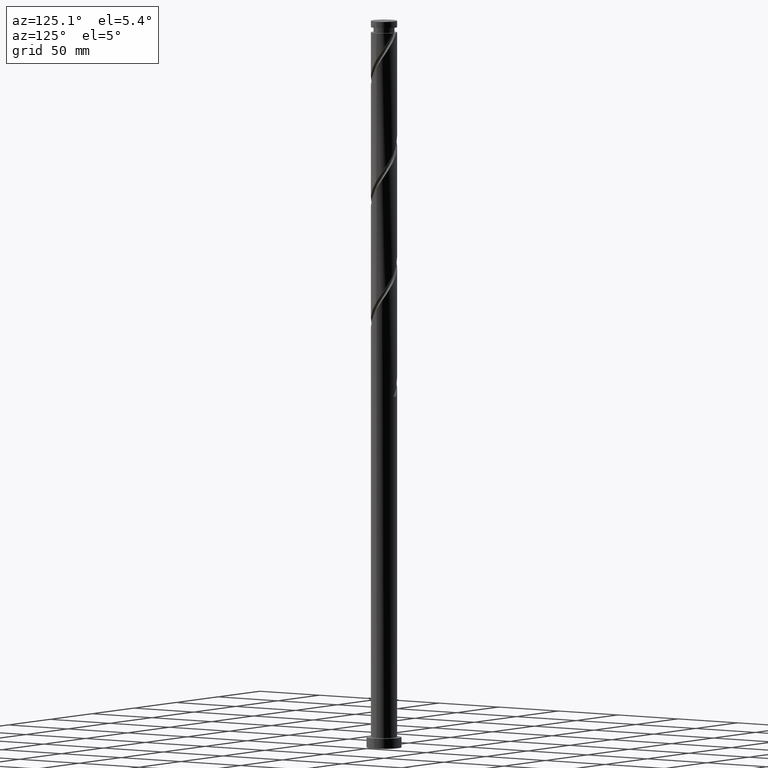
[diagram: clean part render]
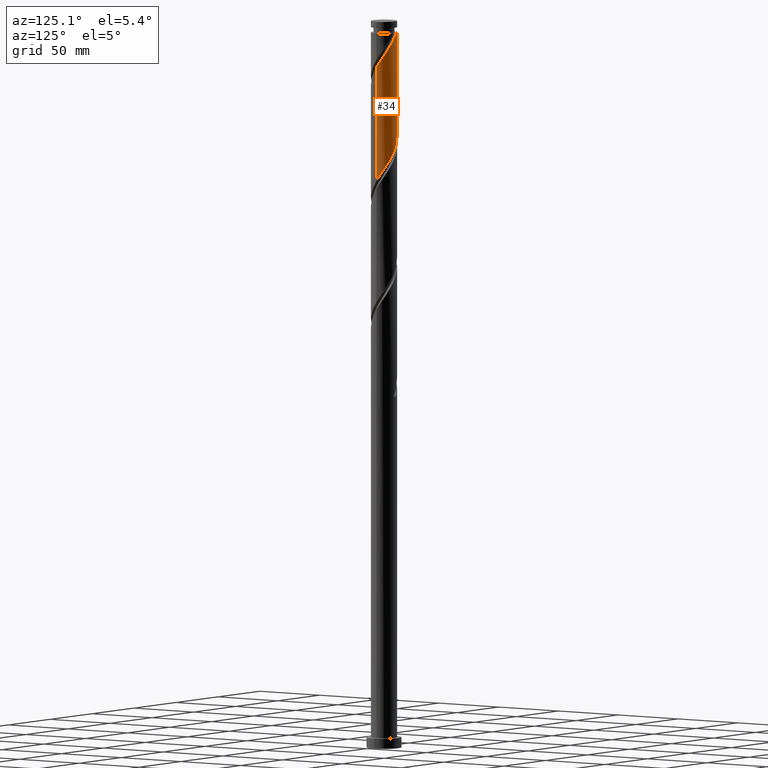
[diagram: same view with one face highlighted and labeled with its STEP entity id]
A machine part, auxiliary view. The second image highlights one B-rep face of the part: STEP entity #34.
In plain terms, the highlighted cylindrical surface (edge-blend (fillet) strip) has radius 9 mm, axis along (-0, -0, -1).
Its self-contained STEP definition (entity closure, byte-faithful):
#29 = CARTESIAN_POINT ( 'NONE',  ( 9.000000000000017764, 9.691915699351521729E-17, 468.5747817011167626 ) ) ;
#34 = ADVANCED_FACE ( 'NONE', ( #1289 ), #1941, .T. ) ;
#50 = CARTESIAN_POINT ( 'NONE',  ( 0.03586761831831040276, 8.999928528269329320, 411.3358120124469224 ) ) ;
#51 = CARTESIAN_POINT ( 'NONE',  ( 0.000000000000000000, 0.000000000000000000, 492.0649786791136080 ) ) ;
#74 = CARTESIAN_POINT ( 'NONE',  ( -7.958643512293389399, 4.294850232963514536, 425.6587286791137217 ) ) ;
#80 = VERTEX_POINT ( 'NONE', #335 ) ;
#85 = CARTESIAN_POINT ( 'NONE',  ( -5.709259818917118423, 7.013565241690909779, 420.4503953457803505 ) ) ;
#90 = EDGE_CURVE ( 'NONE', #1164, #290, #212, .T. ) ;
#125 = CARTESIAN_POINT ( 'NONE',  ( 8.999928528269348860, 0.03586761831830513614, 468.6274786791136080 ) ) ;
#180 = VECTOR ( 'NONE', #1307, 1000.000000000000000 ) ;
#212 = LINE ( 'NONE', #532, #638 ) ;
#221 = CARTESIAN_POINT ( 'NONE',  ( -7.463240103083756516, 5.029915224307700328, 424.3566453457802368 ) ) ;
#231 = CARTESIAN_POINT ( 'NONE',  ( 4.294850232963515424, 7.958643512293386735, 404.8253953457804073 ) ) ;
#241 = CARTESIAN_POINT ( 'NONE',  ( 6.389272728671397061, 6.338548256395620584, 400.9191453457802936 ) ) ;
#273 = CARTESIAN_POINT ( 'NONE',  ( 7.463240103083767174, 5.029915224307708321, 476.4399786791136080 ) ) ;
#290 = VERTEX_POINT ( 'NONE', #915 ) ;
#300 = CARTESIAN_POINT ( 'NONE',  ( -8.643604123793917182, 2.659671564402113386, 428.2628953457804073 ) ) ;
#319 = CARTESIAN_POINT ( 'NONE',  ( 6.338548256395635683, 6.389272728671402390, 479.0441453457802368 ) ) ;
#335 = CARTESIAN_POINT ( 'NONE',  ( -8.999999999999953815, 0.000000000000000000, 492.0649786791136080 ) ) ;
#362 = CARTESIAN_POINT ( 'NONE',  ( 9.000000000000000000, 7.742349579828172045E-15, 390.5551756571103965 ) ) ;
#386 = CARTESIAN_POINT ( 'NONE',  ( 1.790977386791925197, 8.820000000000000284, 408.7316453457802368 ) ) ;
#406 = CARTESIAN_POINT ( 'NONE',  ( -3.410986181794384287, 8.328575704621275833, 416.5441453457802936 ) ) ;
#438 =( BOUNDED_CURVE ( )  B_SPLINE_CURVE ( 2, ( #622, #1265, #1914, #1106, #1753, #300, #949, #74, #221, #879, #1203, #85, #1037, #734, #406, #710, #1861, #1852, #50, #1327, #386, #899, #1353, #231, #1522, #1533, #241, #2005, #1543, #1213, #1510, #1373, #2025, #1841, #362 ),
 .UNSPECIFIED., .F., .T. ) 
 B_SPLINE_CURVE_WITH_KNOTS ( ( 3, 2, 2, 2, 2, 2, 2, 2, 2, 2, 2, 2, 2, 2, 2, 2, 2, 3 ),
 ( 0.4295286902180870392, 0.4296875000000000000, 0.4375000000000000000, 0.4453125000000000000, 0.4531250000000000000, 0.4609375000000000000, 0.4687500000000000000, 0.4765625000000000000, 0.4843750000000000000, 0.4921875000000000000, 0.5000000000000000000, 0.5078125000000000000, 0.5156250000000000000, 0.5234375000000000000, 0.5312500000000000000, 0.5390625000000000000, 0.5468750000000000000, 0.5545286902180872612 ),
 .UNSPECIFIED. ) 
 CURVE ( )  GEOMETRIC_REPRESENTATION_ITEM ( )  RATIONAL_B_SPLINE_CURVE ( ( 0.9089165573359326844, 0.9090019243628375545, 0.9090909090909294887, 0.9047133878838355958, 0.9090909090909294887, 0.9047133878838355958, 0.9090909090909294887, 0.9047133878838355958, 0.9090909090909294887, 0.9047133878838355958, 0.9090909090909294887, 0.9047133878838355958, 0.9090909090909294887, 0.9047133878838355958, 0.9090909090909294887, 0.9047133878838355958, 0.9090909090909294887, 0.9047133878838355958, 0.9090909090909294887, 0.9047133878838355958, 0.9090909090909294887, 0.9047133878838355958, 0.9090909090909294887, 0.9047133878838355958, 0.9090909090909294887, 0.9047133878838355958, 0.9090909090909294887, 0.9047133878838355958, 0.9090909090909294887, 0.9047133878838355958, 0.9090909090909294887, 0.9047133878838355958, 0.9090909090909294887, 0.9048023726119274190, 0.9089165573359329064 ) ) 
 REPRESENTATION_ITEM ( '' )  );
#485 = DIRECTION ( 'NONE',  ( -0.000000000000000000, -0.000000000000000000, -1.000000000000000000 ) ) ;
#532 = CARTESIAN_POINT ( 'NONE',  ( 9.000000000000001776, 1.102182119232617911E-15, 500.0000000000000000 ) ) ;
#578 = CARTESIAN_POINT ( 'NONE',  ( 9.000000000000017764, 0.01793388036832644500, 468.6011352556338920 ) ) ;
#589 = CARTESIAN_POINT ( 'NONE',  ( -0.03586761831830471980, 8.999928528269348860, 489.4608120124469792 ) ) ;
#601 = CARTESIAN_POINT ( 'NONE',  ( 4.970269554913029353, 7.503094065217689845, 481.6483120124469224 ) ) ;
#619 = CIRCLE ( 'NONE', #2080, 8.999999999999953815 ) ;
#622 = CARTESIAN_POINT ( 'NONE',  ( -9.000000000000000000, 5.777872820767290722E-15, 432.2218423237771958 ) ) ;
#630 = ORIENTED_EDGE ( 'NONE', *, *, #1662, .F. ) ;
#638 = VECTOR ( 'NONE', #1810, 1000.000000000000000 ) ;
#670 = AXIS2_PLACEMENT_3D ( 'NONE', #1950, #485, #1133 ) ;
#709 = CARTESIAN_POINT ( 'NONE',  ( -1.790977386788839443, 8.819999999969336812, 492.0649786791136080 ) ) ;
#710 = CARTESIAN_POINT ( 'NONE',  ( -2.590693072679852715, 8.664528520498102182, 415.2420620124470361 ) ) ;
#729 =( BOUNDED_CURVE ( )  B_SPLINE_CURVE ( 2, ( #1576, #578, #125, #1054, #1882, #1393, #1733, #764, #273, #923, #319, #1710, #601, #1221, #966, #1065, #1894, #1123, #589, #932, #1931 ),
 .UNSPECIFIED., .F., .T. ) 
 B_SPLINE_CURVE_WITH_KNOTS ( ( 3, 2, 2, 2, 2, 2, 2, 2, 2, 2, 3 ),
 ( 0.6795286902180870392, 0.6796875000000000000, 0.6875000000000000000, 0.6953125000000000000, 0.7031250000000000000, 0.7109375000000000000, 0.7187500000000000000, 0.7265625000000000000, 0.7343750000000000000, 0.7421875000000000000, 0.7500000000000000000 ),
 .UNSPECIFIED. ) 
 CURVE ( )  GEOMETRIC_REPRESENTATION_ITEM ( )  RATIONAL_B_SPLINE_CURVE ( ( 0.9089165573359386796, 0.9090019243628435497, 0.9090909090909354839, 0.9047133878838415910, 0.9090909090909354839, 0.9047133878838415910, 0.9090909090909354839, 0.9047133878838415910, 0.9090909090909354839, 0.9047133878838415910, 0.9090909090909354839, 0.9047133878838415910, 0.9090909090909354839, 0.9047133878838415910, 0.9090909090909354839, 0.9047133878838415910, 0.9090909090909354839, 0.9047133878838415910, 0.9090909090909354839, 0.9047133878838415910, 0.9090909090909354839 ) ) 
 REPRESENTATION_ITEM ( '' )  );
#734 = CARTESIAN_POINT ( 'NONE',  ( -4.231279290908919855, 7.992622888744453036, 417.8462286791136080 ) ) ;
#764 = CARTESIAN_POINT ( 'NONE',  ( 7.958643512293401834, 4.294850232963517200, 475.1378953457804641 ) ) ;
#833 = LINE ( 'NONE', #1277, #180 ) ;
#879 = CARTESIAN_POINT ( 'NONE',  ( -6.967836693874127185, 5.764980215651887008, 423.0545620124471498 ) ) ;
#895 = ORIENTED_EDGE ( 'NONE', *, *, #1995, .F. ) ;
#899 = CARTESIAN_POINT ( 'NONE',  ( 2.659671564402111610, 8.643604123793918959, 407.4295620124469792 ) ) ;
#915 = CARTESIAN_POINT ( 'NONE',  ( 9.000000000000000000, 7.742349579828170467E-15, 390.5551756571103965 ) ) ;
#923 = CARTESIAN_POINT ( 'NONE',  ( 6.967836693874138732, 5.764980215651893225, 477.7420620124469792 ) ) ;
#932 = CARTESIAN_POINT ( 'NONE',  ( -0.9222832091817357858, 8.996395876206099373, 490.7628953457804073 ) ) ;
#949 = CARTESIAN_POINT ( 'NONE',  ( -8.301123818043652847, 3.477260898682812851, 426.9608120124469224 ) ) ;
#966 = CARTESIAN_POINT ( 'NONE',  ( 3.410986181794391836, 8.328575704621288267, 484.2524786791136648 ) ) ;
#994 = EDGE_CURVE ( 'NONE', #80, #1573, #619, .T. ) ;
#1027 = DIRECTION ( 'NONE',  ( -1.000000000000000000, 0.000000000000000000, 0.000000000000000000 ) ) ;
#1037 = CARTESIAN_POINT ( 'NONE',  ( -4.970269554913016918, 7.503094065217680075, 419.1483120124469792 ) ) ;
#1054 = CARTESIAN_POINT ( 'NONE',  ( 8.996395876206099373, 0.9222832091817362299, 469.9295620124470361 ) ) ;
#1065 = CARTESIAN_POINT ( 'NONE',  ( 2.590693072679860265, 8.664528520498112840, 485.5545620124470361 ) ) ;
#1106 = CARTESIAN_POINT ( 'NONE',  ( -8.996395876206085163, 0.9222832091817345646, 430.8670620124470361 ) ) ;
#1123 = CARTESIAN_POINT ( 'NONE',  ( 0.8505479725451177142, 9.003461180332596570, 488.1587286791136080 ) ) ;
#1133 = DIRECTION ( 'NONE',  ( -1.000000000000000000, 0.000000000000000000, 0.000000000000000000 ) ) ;
#1164 = VERTEX_POINT ( 'NONE', #29 ) ;
#1180 = DIRECTION ( 'NONE',  ( -0.000000000000000000, -0.000000000000000000, -1.000000000000000000 ) ) ;
#1203 = CARTESIAN_POINT ( 'NONE',  ( -6.338548256395620584, 6.389272728671397950, 421.7524786791135512 ) ) ;
#1208 = ORIENTED_EDGE ( 'NONE', *, *, #90, .T. ) ;
#1213 = CARTESIAN_POINT ( 'NONE',  ( 7.992622888744451259, 4.231279290908921631, 397.0128953457804641 ) ) ;
#1221 = CARTESIAN_POINT ( 'NONE',  ( 4.231279290908930513, 7.992622888744459253, 482.9503953457804073 ) ) ;
#1240 = VERTEX_POINT ( 'NONE', #1918 ) ;
#1265 = CARTESIAN_POINT ( 'NONE',  ( -9.000000000000000000, 0.01793388036833214877, 432.1954887692599527 ) ) ;
#1277 = CARTESIAN_POINT ( 'NONE',  ( -9.000000000000001776, 0.000000000000000000, 500.0000000000000000 ) ) ;
#1289 = FACE_OUTER_BOUND ( 'NONE', #1400, .T. ) ;
#1307 = DIRECTION ( 'NONE',  ( -0.000000000000000000, -0.000000000000000000, -1.000000000000000000 ) ) ;
#1327 = CARTESIAN_POINT ( 'NONE',  ( 0.9222832091817348976, 8.996395876206085163, 410.0337286791137217 ) ) ;
#1353 = CARTESIAN_POINT ( 'NONE',  ( 3.477260898682816403, 8.301123818043651070, 406.1274786791136080 ) ) ;
#1373 = CARTESIAN_POINT ( 'NONE',  ( 8.664528520498102182, 2.590693072679852715, 394.4087286791136648 ) ) ;
#1393 = CARTESIAN_POINT ( 'NONE',  ( 8.643604123793931393, 2.659671564402110722, 472.5337286791137785 ) ) ;
#1400 = EDGE_LOOP ( 'NONE', ( #630, #1208, #895, #1651, #1847 ) ) ;
#1495 = EDGE_CURVE ( 'NONE', #80, #1240, #833, .T. ) ;
#1510 = CARTESIAN_POINT ( 'NONE',  ( 8.328575704621277609, 3.410986181794382066, 395.7108120124469792 ) ) ;
#1522 = CARTESIAN_POINT ( 'NONE',  ( 5.029915224307704769, 7.463240103083752075, 403.5233120124469224 ) ) ;
#1533 = CARTESIAN_POINT ( 'NONE',  ( 5.764980215651887896, 6.967836693874123632, 402.2212286791136648 ) ) ;
#1543 = CARTESIAN_POINT ( 'NONE',  ( 7.503094065217680075, 4.970269554913014254, 398.3149786791135512 ) ) ;
#1573 = VERTEX_POINT ( 'NONE', #709 ) ;
#1576 = CARTESIAN_POINT ( 'NONE',  ( 9.000000000000019540, 9.691915699351520496E-17, 468.5747817011167626 ) ) ;
#1651 = ORIENTED_EDGE ( 'NONE', *, *, #1495, .F. ) ;
#1662 = EDGE_CURVE ( 'NONE', #1164, #1573, #729, .T. ) ;
#1710 = CARTESIAN_POINT ( 'NONE',  ( 5.709259818917125529, 7.013565241690921326, 480.3462286791136648 ) ) ;
#1733 = CARTESIAN_POINT ( 'NONE',  ( 8.301123818043667058, 3.477260898682817736, 473.8358120124469224 ) ) ;
#1753 = CARTESIAN_POINT ( 'NONE',  ( -8.820000000000000284, 1.790977386791923864, 429.5649786791135512 ) ) ;
#1810 = DIRECTION ( 'NONE',  ( -0.000000000000000000, -0.000000000000000000, -1.000000000000000000 ) ) ;
#1841 = CARTESIAN_POINT ( 'NONE',  ( 9.000000000000005329, 0.8683183343608228411, 391.8311557625264072 ) ) ;
#1847 = ORIENTED_EDGE ( 'NONE', *, *, #994, .T. ) ;
#1852 = CARTESIAN_POINT ( 'NONE',  ( -0.8505479725451141615, 9.003461180332582359, 412.6378953457804073 ) ) ;
#1861 = CARTESIAN_POINT ( 'NONE',  ( -1.720620522612483771, 8.833994850415340494, 413.9399786791136080 ) ) ;
#1882 = CARTESIAN_POINT ( 'NONE',  ( 8.820000000000012719, 1.790977386791923198, 471.2316453457803505 ) ) ;
#1894 = CARTESIAN_POINT ( 'NONE',  ( 1.720620522612493319, 8.833994850415352929, 486.8566453457804073 ) ) ;
#1914 = CARTESIAN_POINT ( 'NONE',  ( -8.999928528269329320, 0.03586761831831083297, 432.1691453457802936 ) ) ;
#1918 = CARTESIAN_POINT ( 'NONE',  ( -9.000000000000000000, 5.777872820767290722E-15, 432.2218423237771958 ) ) ;
#1931 = CARTESIAN_POINT ( 'NONE',  ( -1.790977386788839443, 8.819999999969336812, 492.0649786791135512 ) ) ;
#1941 = CYLINDRICAL_SURFACE ( 'NONE', #670, 9.000000000000001776 ) ;
#1950 = CARTESIAN_POINT ( 'NONE',  ( 0.000000000000000000, 0.000000000000000000, 500.0000000000000000 ) ) ;
#1995 = EDGE_CURVE ( 'NONE', #1240, #290, #438, .T. ) ;
#2005 = CARTESIAN_POINT ( 'NONE',  ( 7.013565241690913332, 5.709259818917114870, 399.6170620124470929 ) ) ;
#2025 = CARTESIAN_POINT ( 'NONE',  ( 8.833994850415340494, 1.720620522612485548, 393.1066453457802368 ) ) ;
#2080 = AXIS2_PLACEMENT_3D ( 'NONE', #51, #1180, #1027 ) ;